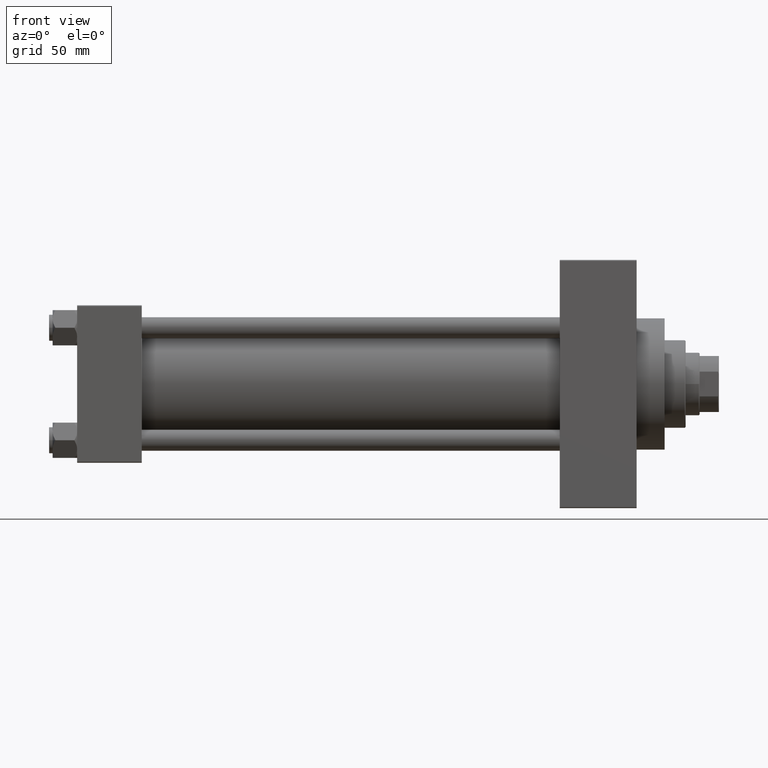
[diagram: clean part render]
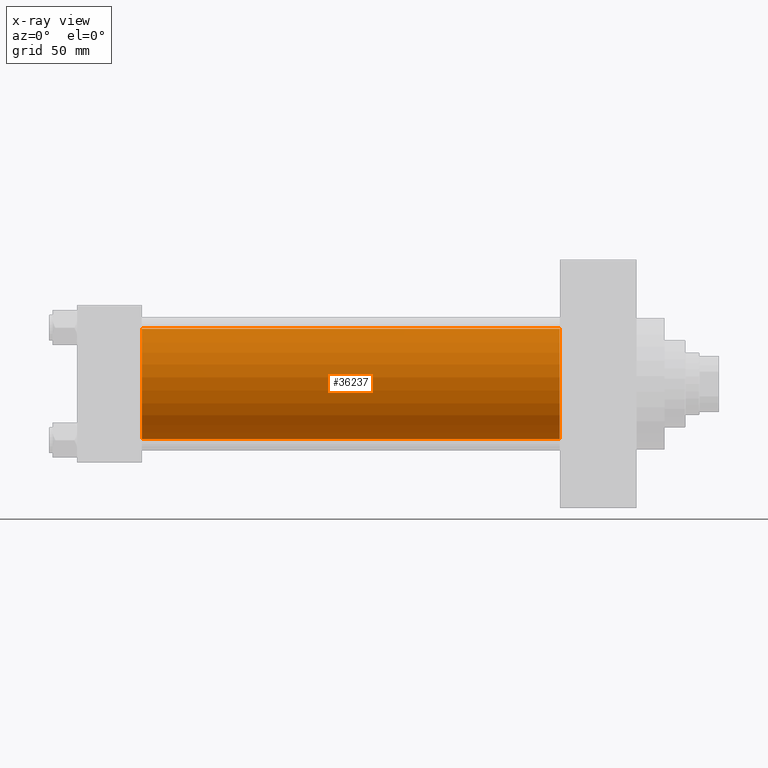
[diagram: x-ray — body ghosted, one internal face saturated and labeled with its STEP entity id]
A machine part, front view, then the same camera in x-ray: the body is ghosted and one INTERNAL B-rep face — a face not visible from any outside direction — is saturated and labeled: STEP entity #36237.
In plain terms, the highlighted cylindrical surface (partial cylindrical patch) has radius 31.5 mm, axis along (-1, -0, -0).
Its self-contained STEP definition (entity closure, byte-faithful):
#951 = EDGE_CURVE ( 'NONE', #13762, #37779, #21063, .T. ) ;
#2506 = CARTESIAN_POINT ( 'NONE',  ( 37.00000000000000000, 1.255552203348951061E-15, -31.50000000000000000 ) ) ;
#2836 = EDGE_LOOP ( 'NONE', ( #24594, #40320, #25140, #23746 ) ) ;
#3085 = CARTESIAN_POINT ( 'NONE',  ( 37.00000000000000000, -2.602085213965210642E-15, 0.000000000000000000 ) ) ;
#4983 = LINE ( 'NONE', #16197, #5399 ) ;
#5051 = AXIS2_PLACEMENT_3D ( 'NONE', #29969, #41613, #40933 ) ;
#5399 = VECTOR ( 'NONE', #29843, 1000.000000000000000 ) ;
#9471 = CARTESIAN_POINT ( 'NONE',  ( 275.9999999999999432, -2.602085213965210642E-15, 0.000000000000000000 ) ) ;
#9712 = FACE_OUTER_BOUND ( 'NONE', #2836, .T. ) ;
#12464 = DIRECTION ( 'NONE',  ( -1.000000000000000000, -0.000000000000000000, -0.000000000000000000 ) ) ;
#13762 = VERTEX_POINT ( 'NONE', #41929 ) ;
#16129 = AXIS2_PLACEMENT_3D ( 'NONE', #3085, #37105, #18501 ) ;
#16172 = DIRECTION ( 'NONE',  ( 0.000000000000000000, 0.000000000000000000, 1.000000000000000000 ) ) ;
#16197 = CARTESIAN_POINT ( 'NONE',  ( 275.9999999999999432, 1.255552203348951061E-15, -31.50000000000000000 ) ) ;
#18501 = DIRECTION ( 'NONE',  ( 0.000000000000000000, 0.000000000000000000, -1.000000000000000000 ) ) ;
#20553 = VECTOR ( 'NONE', #12464, 1000.000000000000000 ) ;
#21063 = CIRCLE ( 'NONE', #5051, 31.50000000000000000 ) ;
#22597 = VERTEX_POINT ( 'NONE', #2506 ) ;
#23746 = ORIENTED_EDGE ( 'NONE', *, *, #43094, .F. ) ;
#24036 = DIRECTION ( 'NONE',  ( -1.000000000000000000, -0.000000000000000000, -0.000000000000000000 ) ) ;
#24594 = ORIENTED_EDGE ( 'NONE', *, *, #951, .T. ) ;
#25140 = ORIENTED_EDGE ( 'NONE', *, *, #47142, .F. ) ;
#25656 = VERTEX_POINT ( 'NONE', #45506 ) ;
#29843 = DIRECTION ( 'NONE',  ( -1.000000000000000000, -0.000000000000000000, -0.000000000000000000 ) ) ;
#29969 = CARTESIAN_POINT ( 'NONE',  ( 275.9999999999999432, -2.602085213965210642E-15, 0.000000000000000000 ) ) ;
#31927 = AXIS2_PLACEMENT_3D ( 'NONE', #9471, #24036, #16172 ) ;
#33552 = CARTESIAN_POINT ( 'NONE',  ( 275.9999999999999432, 1.255552203348951061E-15, -31.50000000000000000 ) ) ;
#35178 = CIRCLE ( 'NONE', #16129, 31.50000000000000000 ) ;
#35249 = CYLINDRICAL_SURFACE ( 'NONE', #31927, 31.50000000000000000 ) ;
#36237 = ADVANCED_FACE ( 'NONE', ( #9712 ), #35249, .F. ) ;
#36675 = LINE ( 'NONE', #40727, #20553 ) ;
#37105 = DIRECTION ( 'NONE',  ( 1.000000000000000000, 0.000000000000000000, 0.000000000000000000 ) ) ;
#37779 = VERTEX_POINT ( 'NONE', #33552 ) ;
#40320 = ORIENTED_EDGE ( 'NONE', *, *, #46913, .T. ) ;
#40727 = CARTESIAN_POINT ( 'NONE',  ( 275.9999999999999432, -2.602085213965210642E-15, 31.50000000000000000 ) ) ;
#40933 = DIRECTION ( 'NONE',  ( 0.000000000000000000, 0.000000000000000000, -1.000000000000000000 ) ) ;
#41613 = DIRECTION ( 'NONE',  ( 1.000000000000000000, 0.000000000000000000, 0.000000000000000000 ) ) ;
#41929 = CARTESIAN_POINT ( 'NONE',  ( 275.9999999999999432, -2.602085213965210642E-15, 31.50000000000000000 ) ) ;
#43094 = EDGE_CURVE ( 'NONE', #13762, #25656, #36675, .T. ) ;
#45506 = CARTESIAN_POINT ( 'NONE',  ( 37.00000000000000000, -2.602085213965210642E-15, 31.50000000000000000 ) ) ;
#46913 = EDGE_CURVE ( 'NONE', #37779, #22597, #4983, .T. ) ;
#47142 = EDGE_CURVE ( 'NONE', #25656, #22597, #35178, .T. ) ;